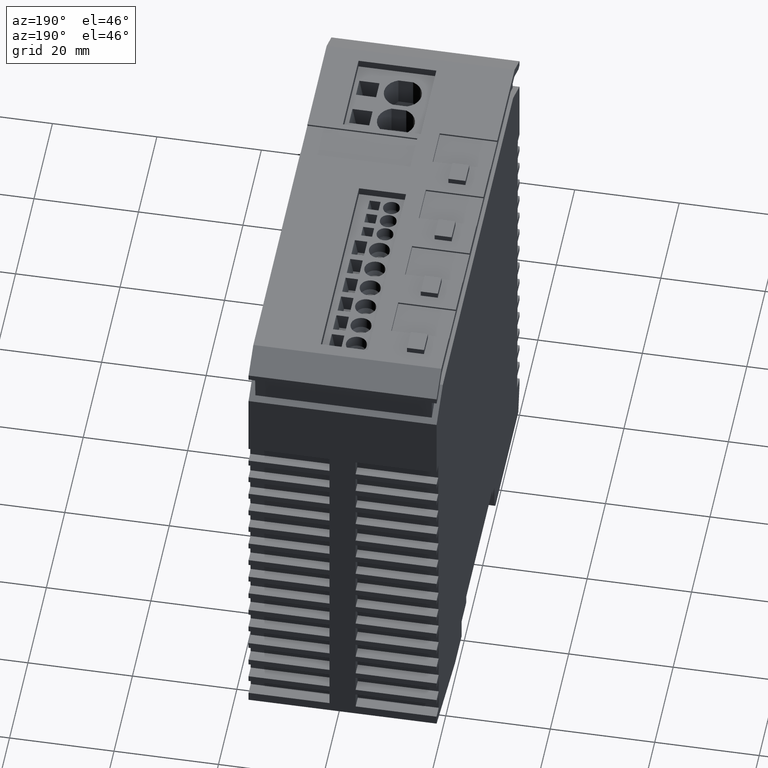
[diagram: clean part render]
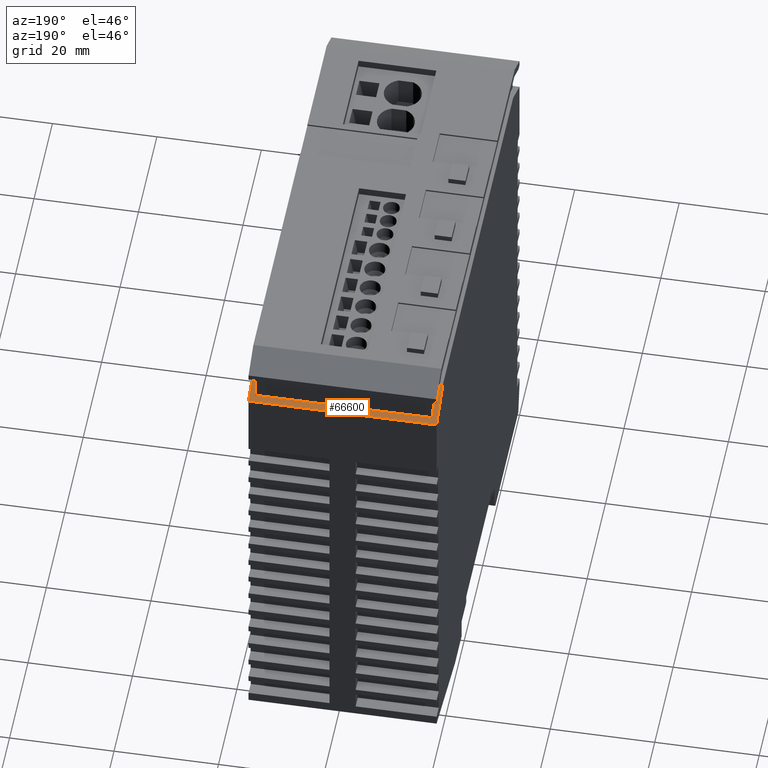
[diagram: same view with one face highlighted and labeled with its STEP entity id]
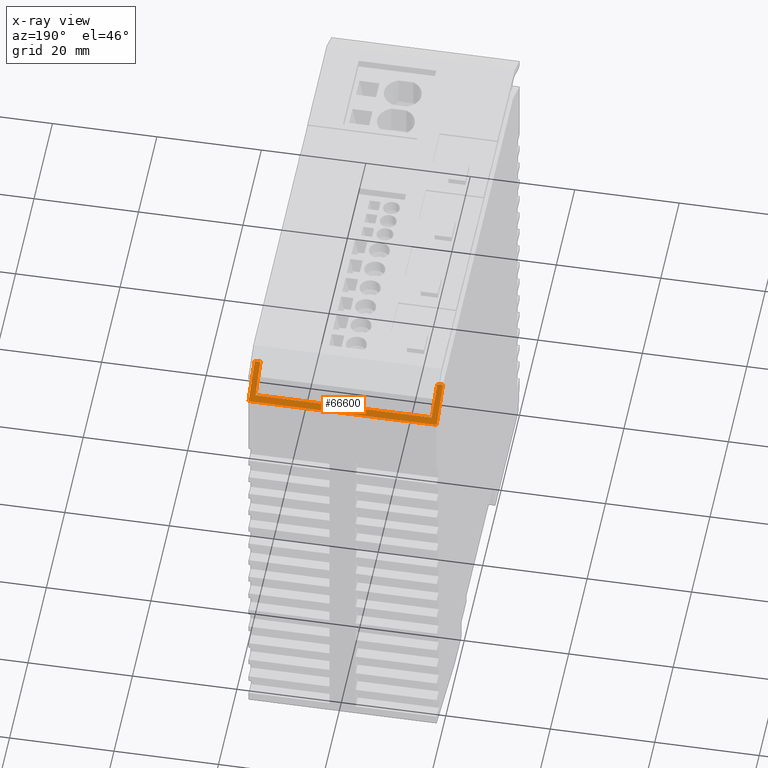
[diagram: x-ray of the same camera — body ghosted, the highlighted face saturated]
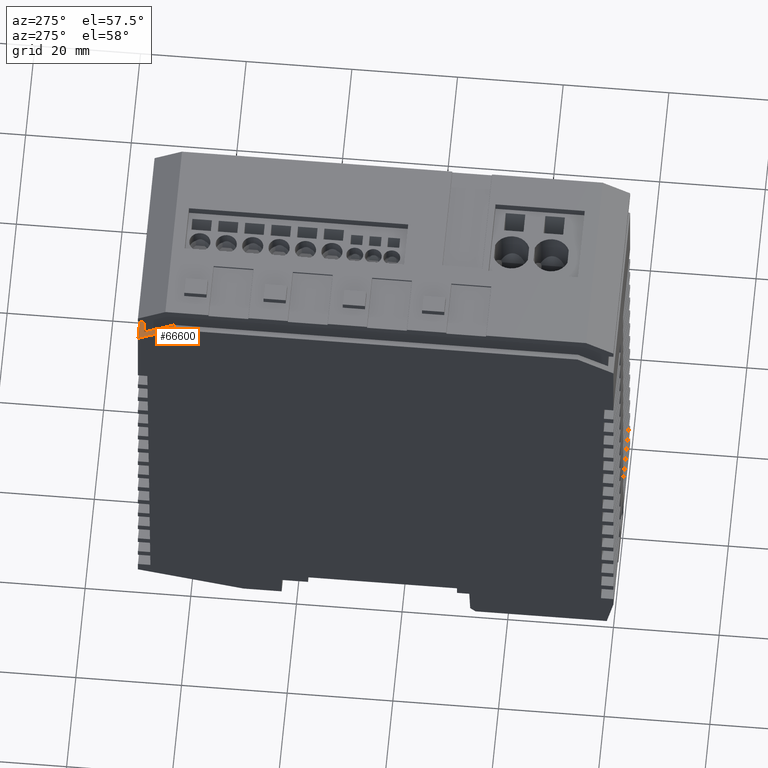
[diagram: same view with one face highlighted and labeled with its STEP entity id]
A machine part, auxiliary view. The second image highlights one B-rep face of the part: STEP entity #66600.
The next image is the same camera in x-ray: the body ghosted, the highlighted face saturated — about 0% of this face is hidden behind the body in this view.
A second angle (auxiliary view) of the same face is appended — the face is thin or edge-on in the first view.
In plain terms, the highlighted planar face has unit normal (-0, 0.5, 0.866).
Its self-contained STEP definition (entity closure, byte-faithful):
#5470=CARTESIAN_POINT('',(86.928203344718,69.6999999999998,
-34.7997901221629));
#5480=VERTEX_POINT('',#5470);
#5510=CARTESIAN_POINT('',(60.9474410438587,24.6999996755416,
-34.7997900934925));
#5520=DIRECTION('',(-0.500000000000002,-0.866025403784438,
5.51761865630249E-10));
#5530=VECTOR('',#5520,1.);
#5540=LINE('',#5510,#5530);
#5550=CARTESIAN_POINT('',(83.0000005007019,62.8961530917275,
-34.7997901178281));
#5560=VERTEX_POINT('',#5550);
#5570=EDGE_CURVE('',#5480,#5560,#5540,.T.);
#18150=CARTESIAN_POINT('',(86.9282033844448,69.6999999999998,
1.20020987783707));
#18160=VERTEX_POINT('',#18150);
#18190=CARTESIAN_POINT('',(86.928203344718,69.6999999999998,
-34.7997901221629));
#18200=DIRECTION('',(-1.10352367625519E-9,-8.52434683568721E-24,-1.));
#18210=VECTOR('',#18200,1.);
#18220=LINE('',#18190,#18210);
#18230=EDGE_CURVE('',#18160,#5480,#18220,.T.);
#66050=CARTESIAN_POINT('',(86.2854852393988,68.5867795178338,
1.20020987854632));
#66060=DIRECTION('',(-0.866025403784438,0.500000000000001,
9.55679537314579E-10));
#66070=DIRECTION('',(0.500000000000002,0.866025403784438,
-5.51761865630249E-10));
#66080=AXIS2_PLACEMENT_3D('',#66050,#66060,#66070);
#66090=PLANE('',#66080);
#66100=CARTESIAN_POINT('',(60.9474410835855,24.6999996755416,
1.20020990650746));
#66110=DIRECTION('',(-0.500000000000002,-0.866025403784438,
5.51761865630249E-10));
#66120=VECTOR('',#66110,1.);
#66130=LINE('',#66100,#66120);
#66140=CARTESIAN_POINT('',(83.0000005404287,62.8961530917275,
1.20020988217193));
#66150=VERTEX_POINT('',#66140);
#66160=EDGE_CURVE('',#18160,#66150,#66130,.T.);
#66170=ORIENTED_EDGE('',*,*,#66160,.F.);
#66180=CARTESIAN_POINT('',(83.0000005007019,62.8961530917275,
-34.7997901178281));
#66190=DIRECTION('',(-1.10352367625519E-9,-8.52460139740354E-24,-1.));
#66200=VECTOR('',#66190,1.);
#66210=LINE('',#66180,#66200);
#66220=CARTESIAN_POINT('',(83.0000005392319,62.8961530917275,
0.115661264550751));
#66230=VERTEX_POINT('',#66220);
#66240=EDGE_CURVE('',#66150,#66230,#66210,.T.);
#66250=ORIENTED_EDGE('',*,*,#66240,.F.);
#66260=CARTESIAN_POINT('',(60.9474410826011,24.6999996755416,
0.308111059714414));
#66270=DIRECTION('',(-0.499995240174315,-0.866017159532854,
0.00436339290881802));
#66280=VECTOR('',#66270,1.);
#66290=LINE('',#66260,#66280);
#66300=CARTESIAN_POINT('',(86.2854852381704,68.5867795178338,
0.0869892703286071));
#66310=VERTEX_POINT('',#66300);
#66320=EDGE_CURVE('',#66310,#66230,#66290,.T.);
#66330=ORIENTED_EDGE('',*,*,#66320,.T.);
#66340=CARTESIAN_POINT('',(86.2854851956993,68.5867795178338,
-38.3997926510046));
#66350=DIRECTION('',(1.10352367625519E-9,8.52460139740354E-24,1.));
#66360=VECTOR('',#66350,1.);
#66370=LINE('',#66340,#66360);
#66380=CARTESIAN_POINT('',(86.2854852009004,68.5867795178338,
-33.686569513237));
#66390=VERTEX_POINT('',#66380);
#66400=EDGE_CURVE('',#66390,#66310,#66370,.T.);
#66410=ORIENTED_EDGE('',*,*,#66400,.T.);
#66420=CARTESIAN_POINT('',(60.9474410448431,24.6999996755416,
-33.9076912466996));
#66430=DIRECTION('',(0.499995240183945,0.866017159532854,
0.00436339180528576));
#66440=VECTOR('',#66430,1.);
#66450=LINE('',#66420,#66440);
#66460=CARTESIAN_POINT('',(83.0000005018987,62.8961530917275,
-33.7152415002078));
#66470=VERTEX_POINT('',#66460);
#66480=EDGE_CURVE('',#66470,#66390,#66450,.T.);
#66490=ORIENTED_EDGE('',*,*,#66480,.T.);
#66500=CARTESIAN_POINT('',(83.0000005007019,62.8961530917275,
-34.7997901178281));
#66510=DIRECTION('',(-1.10352367625519E-9,-8.52460139740354E-24,-1.));
#66520=VECTOR('',#66510,1.);
#66530=LINE('',#66500,#66520);
#66540=EDGE_CURVE('',#66470,#5560,#66530,.T.);
#66550=ORIENTED_EDGE('',*,*,#66540,.F.);
#66560=ORIENTED_EDGE('',*,*,#5570,.T.);
#66570=ORIENTED_EDGE('',*,*,#18230,.T.);
#66580=EDGE_LOOP('',(#66570,#66560,#66550,#66490,#66410,#66330,#66250,
#66170));
#66590=FACE_OUTER_BOUND('',#66580,.T.);
#66600=ADVANCED_FACE('',(#66590),#66090,.T.);